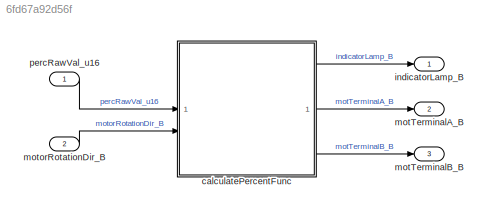
MODEL slx_6fd67a92d56f
KIND model
CONFIG AbsTol = auto
CONFIG EnableMultiTasking = off
CONFIG FixedStep = 0.01
CONFIG MaxStep = auto
CONFIG MinStep = auto
CONFIG RelTol = 1e-3
CONFIG SampleTimeConstraint = Unconstrained
CONFIG SolverName = FixedStepDiscrete
CONFIG StartTime = 0.0
CONFIG StopTime = 10
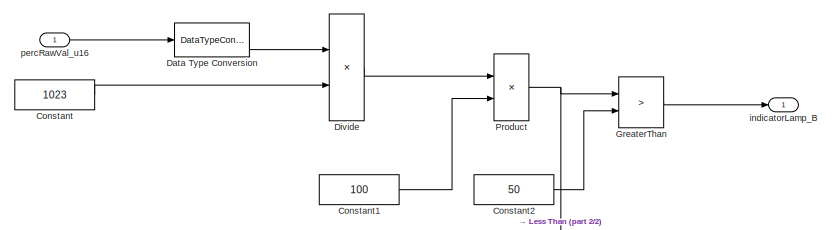
[diagram: calculatePercentFunc - part 1/2, top left region]
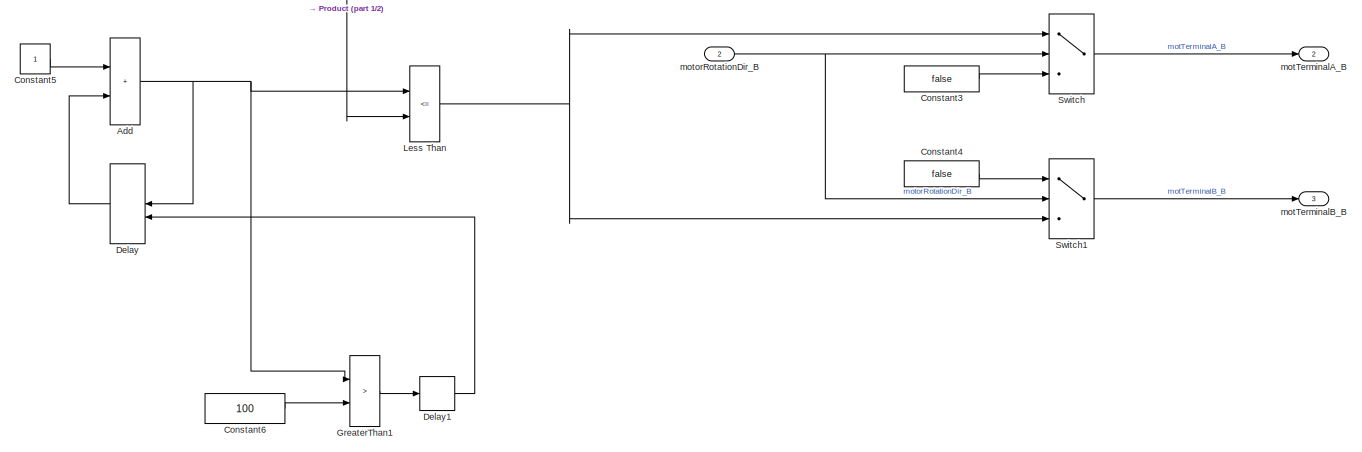
[diagram: calculatePercentFunc - part 2/2, full width, bottom band]
BLOCK [SubSystem] calculatePercentFunc
  RTWFcnNameOpts = Use subsystem name
  RTWFileNameOpts = Use subsystem name
  RTWSystemCode = Reusable function
  TreatAsAtomicUnit = on
BLOCK [Sum] calculatePercentFunc/Add
  IconShape = rectangular
BLOCK [Constant] calculatePercentFunc/Constant
  OutDataTypeStr = single
  Value = 1023
BLOCK [Constant] calculatePercentFunc/Constant1
  OutDataTypeStr = int8
  Value = 100
BLOCK [Constant] calculatePercentFunc/Constant2
  OutDataTypeStr = int8
  Value = 50
BLOCK [Constant] calculatePercentFunc/Constant3
  OutDataTypeStr = boolean
  Value = false
BLOCK [Constant] calculatePercentFunc/Constant4
  OutDataTypeStr = boolean
  Value = false
BLOCK [Constant] calculatePercentFunc/Constant5
  OutDataTypeStr = int8
BLOCK [Constant] calculatePercentFunc/Constant6
  OutDataTypeStr = int8
  Value = 100
BLOCK [DataTypeConversion] calculatePercentFunc/Data Type Conversion
  OutDataTypeStr = single
  RndMeth = Floor
  SaturateOnIntegerOverflow = off
BLOCK [Delay] calculatePercentFunc/Delay
  DelayLength = 1
  ExternalReset = Rising
  InputPortMap = u0,r5
BLOCK [Delay] calculatePercentFunc/Delay1
  DelayLength = 1
  InputPortMap = u0
BLOCK [Product] calculatePercentFunc/Divide
  Inputs = */
BLOCK [RelationalOperator] calculatePercentFunc/GreaterThan
  InputSameDT = off
  Operator = >
  OutDataTypeStr = boolean
  RndMeth = Simplest
BLOCK [RelationalOperator] calculatePercentFunc/GreaterThan1
  InputSameDT = off
  Operator = >
  OutDataTypeStr = boolean
  RndMeth = Simplest
BLOCK [RelationalOperator] calculatePercentFunc/Less Than
  InputSameDT = off
  Operator = <=
  OutDataTypeStr = boolean
  RndMeth = Simplest
BLOCK [Product] calculatePercentFunc/Product
BLOCK [Switch] calculatePercentFunc/Switch
  Criteria = u2 ~= 0
  InputSameDT = off
  SaturateOnIntegerOverflow = off
BLOCK [Switch] calculatePercentFunc/Switch1
  Criteria = u2 ~= 0
  InputSameDT = off
  SaturateOnIntegerOverflow = off
BLOCK [Outport] calculatePercentFunc/indicatorLamp_B
  OutDataTypeStr = boolean
BLOCK [Outport] calculatePercentFunc/motTerminalA_B
  OutDataTypeStr = boolean
  Port = 2
BLOCK [Outport] calculatePercentFunc/motTerminalB_B
  OutDataTypeStr = boolean
  Port = 3
BLOCK [Inport] calculatePercentFunc/motorRotationDir_B
  OutDataTypeStr = boolean
  Port = 2
BLOCK [Inport] calculatePercentFunc/percRawVal_u16
  OutDataTypeStr = uint16
BLOCK [Outport] indicatorLamp_B
  OutDataTypeStr = boolean
BLOCK [Outport] motTerminalA_B
  OutDataTypeStr = boolean
  Port = 2
BLOCK [Outport] motTerminalB_B
  OutDataTypeStr = boolean
  Port = 3
BLOCK [Inport] motorRotationDir_B
  OutDataTypeStr = boolean
  Port = 2
BLOCK [Inport] percRawVal_u16
  OutDataTypeStr = uint16
NET calculatePercentFunc/Add:1 -> calculatePercentFunc/Delay:1, calculatePercentFunc/GreaterThan1:1, calculatePercentFunc/Less Than:1
LINE calculatePercentFunc/Constant1:1 -> calculatePercentFunc/Product:2
LINE calculatePercentFunc/Constant2:1 -> calculatePercentFunc/GreaterThan:2
LINE calculatePercentFunc/Constant3:1 -> calculatePercentFunc/Switch:3
LINE calculatePercentFunc/Constant4:1 -> calculatePercentFunc/Switch1:1
LINE calculatePercentFunc/Constant5:1 -> calculatePercentFunc/Add:1
LINE calculatePercentFunc/Constant6:1 -> calculatePercentFunc/GreaterThan1:2
LINE calculatePercentFunc/Constant:1 -> calculatePercentFunc/Divide:2
LINE calculatePercentFunc/Data Type Conversion:1 -> calculatePercentFunc/Divide:1
LINE calculatePercentFunc/Delay1:1 -> calculatePercentFunc/Delay:2
LINE calculatePercentFunc/Delay:1 -> calculatePercentFunc/Add:2
LINE calculatePercentFunc/Divide:1 -> calculatePercentFunc/Product:1
LINE calculatePercentFunc/GreaterThan1:1 -> calculatePercentFunc/Delay1:1
LINE calculatePercentFunc/GreaterThan:1 -> calculatePercentFunc/indicatorLamp_B:1
NET calculatePercentFunc/Less Than:1 -> calculatePercentFunc/Switch1:3, calculatePercentFunc/Switch:1
NET calculatePercentFunc/Product:1 -> calculatePercentFunc/GreaterThan:1, calculatePercentFunc/Less Than:2
LINE calculatePercentFunc/Switch1:1 -> calculatePercentFunc/motTerminalB_B:1
LINE calculatePercentFunc/Switch:1 -> calculatePercentFunc/motTerminalA_B:1
NET calculatePercentFunc/motorRotationDir_B:1 -> calculatePercentFunc/Switch1:2, calculatePercentFunc/Switch:2
LINE calculatePercentFunc/percRawVal_u16:1 -> calculatePercentFunc/Data Type Conversion:1
LINE calculatePercentFunc:1 -> indicatorLamp_B:1
LINE calculatePercentFunc:2 -> motTerminalA_B:1
LINE calculatePercentFunc:3 -> motTerminalB_B:1
LINE motorRotationDir_B:1 -> calculatePercentFunc:2
LINE percRawVal_u16:1 -> calculatePercentFunc:1
note: NET lines group one-source signal fan-out (src -> all destinations, sorted); 1:1 wires keep LINE
